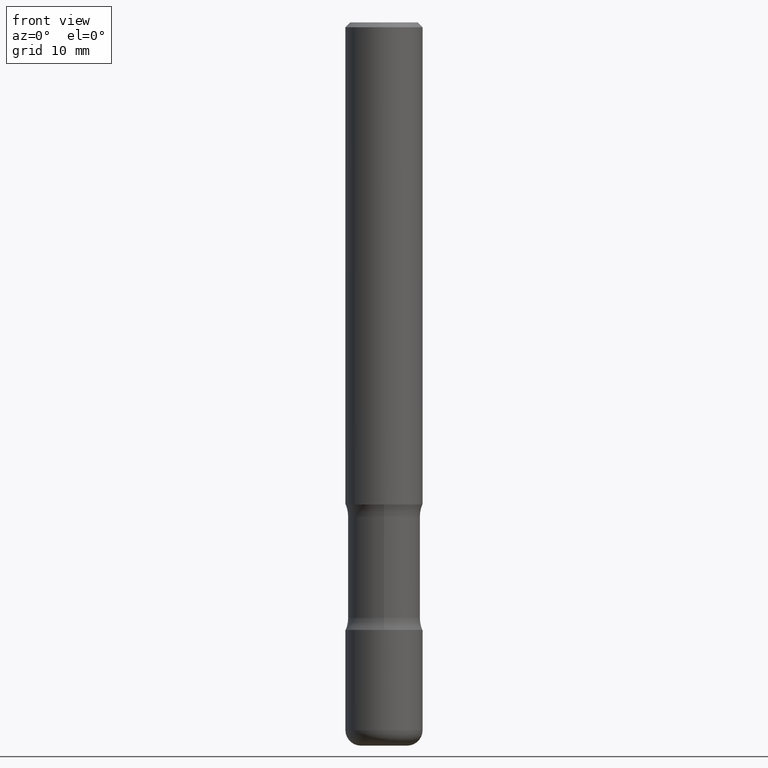
[diagram: clean part render]
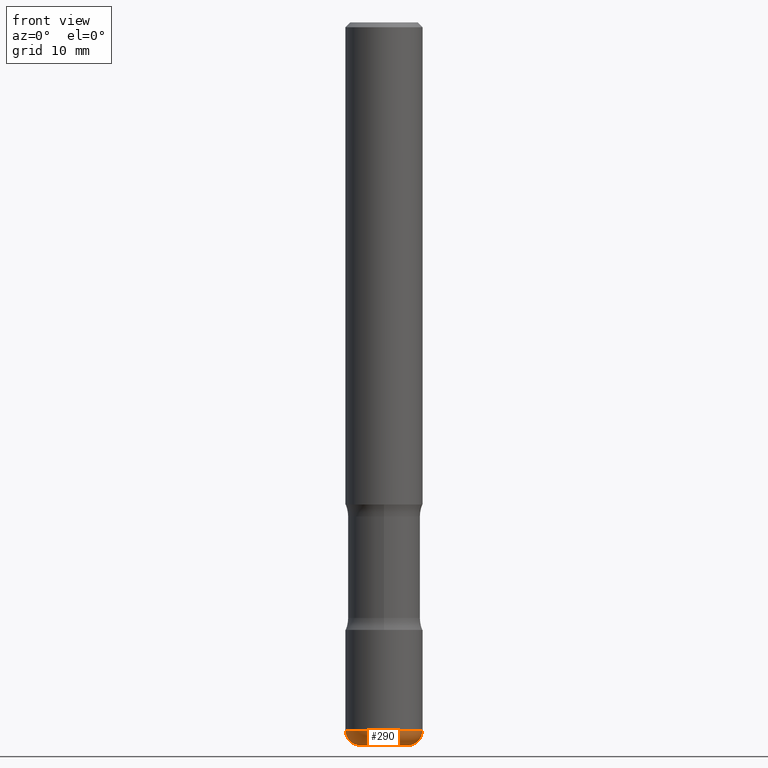
[diagram: same view with one face highlighted and labeled with its STEP entity id]
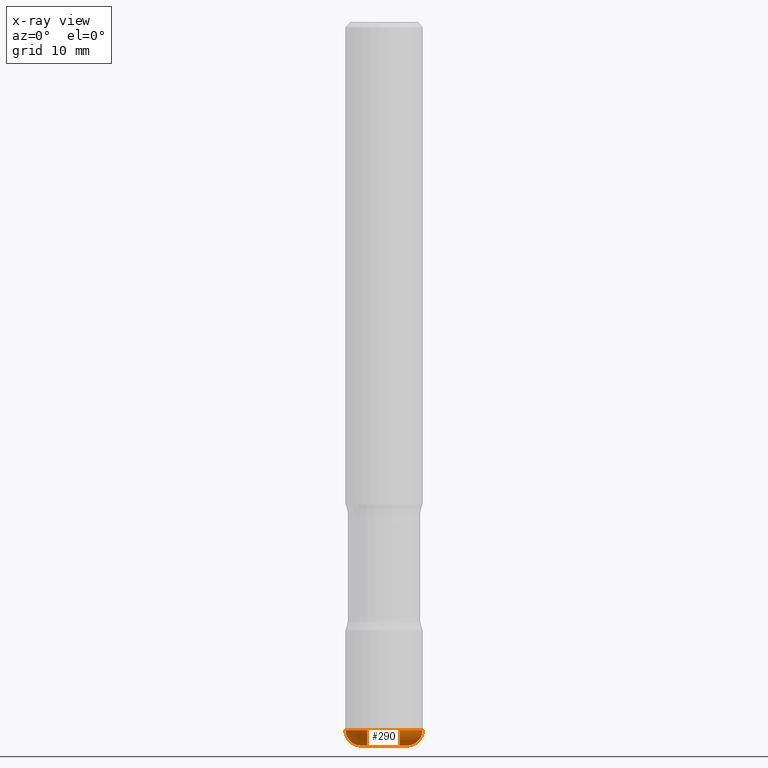
[diagram: x-ray of the same camera — body ghosted, the highlighted face saturated]
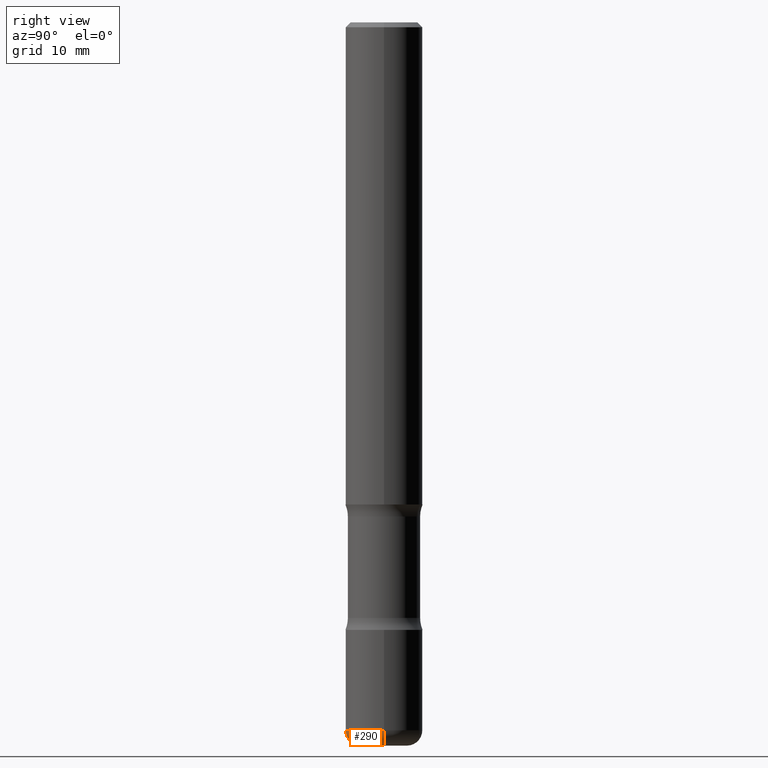
[diagram: same view with one face highlighted and labeled with its STEP entity id]
A machine part, front view. The second image highlights one B-rep face of the part: STEP entity #290.
The next image is the same camera in x-ray: the body ghosted, the highlighted face saturated — about 0% of this face is hidden behind the body in this view.
A second angle (right view) of the same face is appended — the face is thin or edge-on in the first view.
In plain terms, the highlighted toroidal blend (fillet) surface has major radius 2.4003 mm and minor (blend) radius 1.6002 mm.
Its self-contained STEP definition (entity closure, byte-faithful):
#16 = CARTESIAN_POINT ( 'NONE',  ( 0.1575000000000003619, -1.118949939472451419E-14, -2.889800000000000590 ) ) ;
#21 = CARTESIAN_POINT ( 'NONE',  ( 7.066915756113808586E-29, -1.008968277298892435E-14, -2.889800000000000590 ) ) ;
#22 = AXIS2_PLACEMENT_3D ( 'NONE', #21, #159, #288 ) ;
#34 = CIRCLE ( 'NONE', #124, 0.06299999999999991718 ) ;
#39 = CARTESIAN_POINT ( 'NONE',  ( 0.09450000000000038924, -1.096953607037739528E-14, -2.952800000000000313 ) ) ;
#71 = VERTEX_POINT ( 'NONE', #404 ) ;
#77 = CARTESIAN_POINT ( 'NONE',  ( -0.09450000000000038924, -9.418219887695627890E-15, -2.889800000000000590 ) ) ;
#82 = ORIENTED_EDGE ( 'NONE', *, *, #345, .T. ) ;
#94 = CARTESIAN_POINT ( 'NONE',  ( 0.09450000000000038924, -1.074957274603027794E-14, -2.889800000000000590 ) ) ;
#110 = AXIS2_PLACEMENT_3D ( 'NONE', #547, #369, #327 ) ;
#118 = EDGE_LOOP ( 'NONE', ( #131, #179, #82, #470 ) ) ;
#124 = AXIS2_PLACEMENT_3D ( 'NONE', #94, #185, #145 ) ;
#131 = ORIENTED_EDGE ( 'NONE', *, *, #247, .F. ) ;
#137 = DIRECTION ( 'NONE',  ( -2.445468806185136597E-29, 3.491481338843145583E-15, 1.000000000000000000 ) ) ;
#145 = DIRECTION ( 'NONE',  ( 1.000000000000000000, -6.982962677686265133E-15, 0.000000000000000000 ) ) ;
#159 = DIRECTION ( 'NONE',  ( -2.445468806185136597E-29, 3.491481338843145583E-15, 1.000000000000000000 ) ) ;
#173 = AXIS2_PLACEMENT_3D ( 'NONE', #77, #300, #311 ) ;
#179 = ORIENTED_EDGE ( 'NONE', *, *, #254, .T. ) ;
#185 = DIRECTION ( 'NONE',  ( -6.982962677686266711E-15, -1.000000000000000000, 3.491481338843145583E-15 ) ) ;
#200 = CIRCLE ( 'NONE', #173, 0.06299999999999991718 ) ;
#222 = VERTEX_POINT ( 'NONE', #39 ) ;
#241 = CARTESIAN_POINT ( 'NONE',  ( -0.09450000000000038924, -9.304380588104755985E-15, -2.952800000000000313 ) ) ;
#247 = EDGE_CURVE ( 'NONE', #292, #71, #200, .T. ) ;
#254 = EDGE_CURVE ( 'NONE', #292, #222, #482, .T. ) ;
#268 = DIRECTION ( 'NONE',  ( 1.000000000000000000, -6.982962677686269077E-15, 0.000000000000000000 ) ) ;
#288 = DIRECTION ( 'NONE',  ( 1.000000000000000000, -6.982962677686273021E-15, 4.883557194083115143E-29 ) ) ;
#290 = ADVANCED_FACE ( 'NONE', ( #453 ), #426, .T. ) ;
#292 = VERTEX_POINT ( 'NONE', #241 ) ;
#300 = DIRECTION ( 'NONE',  ( 7.105427357601001859E-15, 1.000000000000000000, -3.491481338843145583E-15 ) ) ;
#311 = DIRECTION ( 'NONE',  ( -1.000000000000000000, 7.105427357600993970E-15, 0.000000000000000000 ) ) ;
#318 = CARTESIAN_POINT ( 'NONE',  ( 7.066915756113808586E-29, -1.008968277298892435E-14, -2.889800000000000590 ) ) ;
#327 = DIRECTION ( 'NONE',  ( 1.000000000000000000, -6.982962677686258033E-15, 0.000000000000000000 ) ) ;
#342 = AXIS2_PLACEMENT_3D ( 'NONE', #318, #137, #268 ) ;
#345 = EDGE_CURVE ( 'NONE', #222, #463, #34, .T. ) ;
#369 = DIRECTION ( 'NONE',  ( -2.445468806185136597E-29, 3.491481338843145583E-15, 1.000000000000000000 ) ) ;
#404 = CARTESIAN_POINT ( 'NONE',  ( -0.1575000000000003619, -8.970577964166765164E-15, -2.889800000000000590 ) ) ;
#426 = TOROIDAL_SURFACE ( 'NONE', #22, 0.09450000000000038924, 0.06299999999999993106 ) ;
#449 = EDGE_CURVE ( 'NONE', #71, #463, #502, .T. ) ;
#453 = FACE_OUTER_BOUND ( 'NONE', #118, .T. ) ;
#463 = VERTEX_POINT ( 'NONE', #16 ) ;
#470 = ORIENTED_EDGE ( 'NONE', *, *, #449, .F. ) ;
#482 = CIRCLE ( 'NONE', #110, 0.09450000000000038924 ) ;
#502 = CIRCLE ( 'NONE', #342, 0.1575000000000003897 ) ;
#547 = CARTESIAN_POINT ( 'NONE',  ( 7.220980290903472425E-29, -1.030964609733604011E-14, -2.952800000000000313 ) ) ;